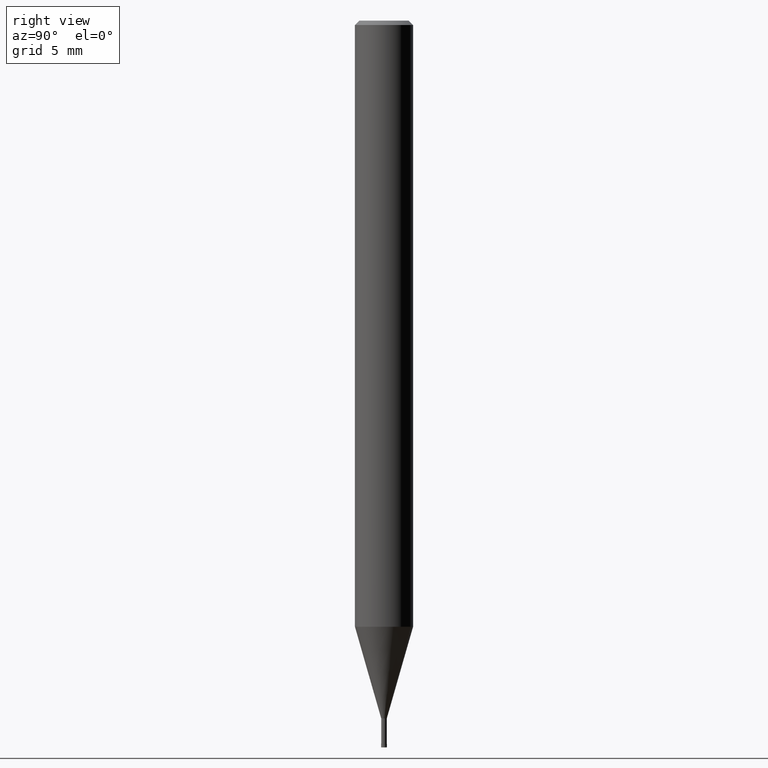
[diagram: clean part render]
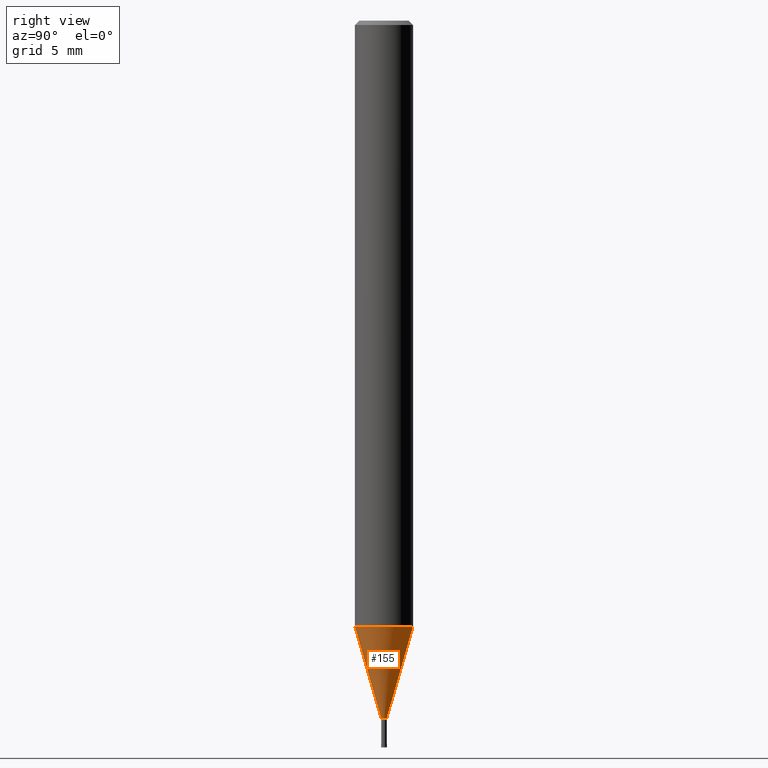
[diagram: same view with one face highlighted and labeled with its STEP entity id]
A machine part, right view. The second image highlights one B-rep face of the part: STEP entity #155.
In plain terms, the highlighted conical surface has half-angle 15.999 deg.
Its self-contained STEP definition (entity closure, byte-faithful):
#151=EDGE_CURVE('',#169,#317,#387,.T.);
#153=EDGE_CURVE('',#209,#291,#389,.T.);
#155=ADVANCED_FACE('',(#391),#392,.T.);
#169=VERTEX_POINT('',#407);
#209=VERTEX_POINT('',#448);
#273=EDGE_CURVE('',#209,#317,#526,.T.);
#291=VERTEX_POINT('',#547);
#317=VERTEX_POINT('',#577);
#343=EDGE_CURVE('',#291,#169,#607,.T.);
#387=LINE('',#648,#649);
#389=LINE('',#652,#653);
#391=FACE_OUTER_BOUND('',#655,.T.);
#392=CONICAL_SURFACE('',#656,1.0962,0.279231732547063);
#407=CARTESIAN_POINT('',(2.35675492793117E-017,-0.19245,-47.99));
#448=CARTESIAN_POINT('',(0.0,1.99995,-41.686));
#526=CIRCLE('',#828,1.99995);
#547=CARTESIAN_POINT('',(0.0,0.19245,-47.99));
#577=CARTESIAN_POINT('',(2.44915147732706E-016,-1.99995,-41.686));
#607=CIRCLE('',#925,0.19245);
#648=CARTESIAN_POINT('',(1.34241348506009E-016,-1.0962,-44.838));
#649=VECTOR('',#957,1.0);
#652=CARTESIAN_POINT('',(-1.34241348506009E-016,1.0962,-44.838));
#653=VECTOR('',#958,1.0);
#655=EDGE_LOOP('',(#960,#961,#962,#963));
#656=AXIS2_PLACEMENT_3D('',#964,#965,#966);
#828=AXIS2_PLACEMENT_3D('',#1133,#1134,#1135);
#925=AXIS2_PLACEMENT_3D('',#1244,#1245,#1246);
#957=DIRECTION('',(3.375225981805E-017,-0.275617219465657,0.961267469715906));
#958=DIRECTION('',(3.375225981805E-017,-0.275617219465657,-0.961267469715906));
#960=ORIENTED_EDGE('',*,*,#153,.F.);
#961=ORIENTED_EDGE('',*,*,#273,.T.);
#962=ORIENTED_EDGE('',*,*,#151,.F.);
#963=ORIENTED_EDGE('',*,*,#343,.F.);
#964=CARTESIAN_POINT('',(0.0,0.0,-44.838));
#965=DIRECTION('',(-0.0,-0.0,1.0));
#966=DIRECTION('',(0.0,1.0,0.0));
#1133=CARTESIAN_POINT('',(0.0,0.0,-41.686));
#1134=DIRECTION('',(0.0,0.0,-1.0));
#1135=DIRECTION('',(0.0,1.0,0.0));
#1244=CARTESIAN_POINT('',(0.0,0.0,-47.99));
#1245=DIRECTION('',(0.0,0.0,-1.0));
#1246=DIRECTION('',(0.0,1.0,0.0));